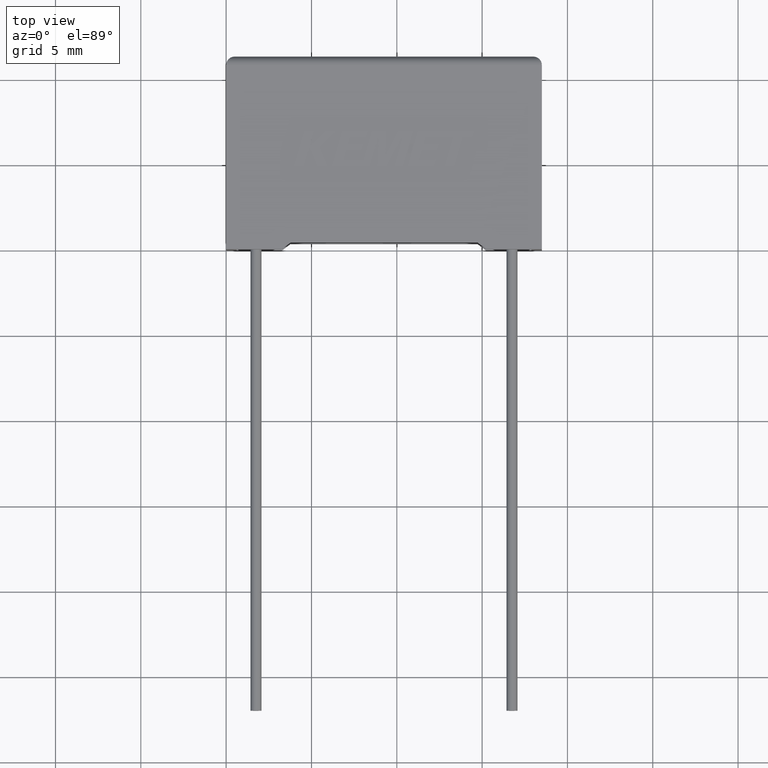
[diagram: clean part render]
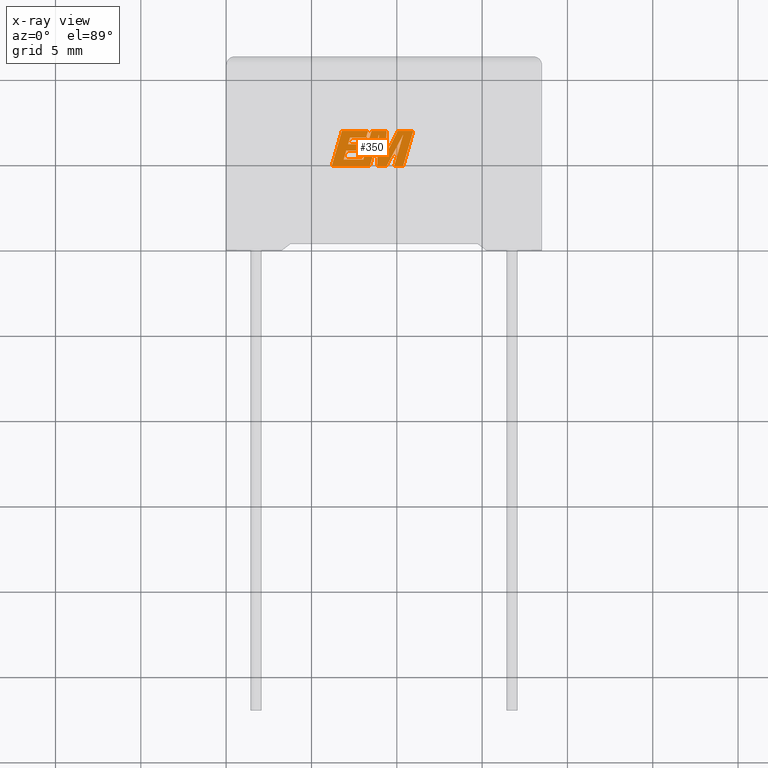
[diagram: x-ray — body ghosted, one internal face saturated and labeled with its STEP entity id]
A machine part, top view, then the same camera in x-ray: the body is ghosted and one INTERNAL B-rep face — a face not visible from any outside direction — is saturated and labeled: STEP entity #350.
In plain terms, the highlighted planar face has unit normal (0, 0, -1).
Its self-contained STEP definition (entity closure, byte-faithful):
#20 = CARTESIAN_POINT ( 'NONE',  ( 6.888674853712253743, 5.256618825333078782, 5.299999999999999822 ) ) ;
#31 = LINE ( 'NONE', #1707, #1577 ) ;
#39 = LINE ( 'NONE', #2155, #714 ) ;
#59 = VECTOR ( 'NONE', #2990, 1000.000000000000000 ) ;
#88 = VERTEX_POINT ( 'NONE', #2840 ) ;
#105 = ORIENTED_EDGE ( 'NONE', *, *, #169, .F. ) ;
#127 = CARTESIAN_POINT ( 'NONE',  ( 8.947895129408749426, 6.707175502838268244, 5.299999999999999822 ) ) ;
#145 = CARTESIAN_POINT ( 'NONE',  ( 9.843154327425178707, 4.862389999999935597, 5.299999999999999822 ) ) ;
#150 = DIRECTION ( 'NONE',  ( -1.000000000000000000, 0.000000000000000000, 0.000000000000000000 ) ) ;
#156 = CARTESIAN_POINT ( 'NONE',  ( 7.924683256288299837, 5.771630239467497425, 5.299999999999999822 ) ) ;
#163 = EDGE_CURVE ( 'NONE', #884, #2907, #1400, .T. ) ;
#169 = EDGE_CURVE ( 'NONE', #1984, #1025, #2555, .T. ) ;
#170 = LINE ( 'NONE', #1593, #754 ) ;
#196 = CARTESIAN_POINT ( 'NONE',  ( 8.200952163646057613, 6.540121274375008120, 5.299999999999999822 ) ) ;
#204 = CARTESIAN_POINT ( 'NONE',  ( 7.256856979931010088, 6.540121274375008120, 5.299999999999999822 ) ) ;
#213 = VECTOR ( 'NONE', #1572, 1000.000000000000227 ) ;
#236 = CARTESIAN_POINT ( 'NONE',  ( 10.05664773880616991, 6.934545418444622911, 5.299999999999999822 ) ) ;
#248 = VECTOR ( 'NONE', #1623, 1000.000000000000000 ) ;
#252 = ORIENTED_EDGE ( 'NONE', *, *, #435, .F. ) ;
#256 = VECTOR ( 'NONE', #1540, 1000.000000000000000 ) ;
#268 = VERTEX_POINT ( 'NONE', #1986 ) ;
#277 = VERTEX_POINT ( 'NONE', #236 ) ;
#282 = CARTESIAN_POINT ( 'NONE',  ( 8.418203306722089607, 4.862389999999935597, 5.299999999999999822 ) ) ;
#304 = ORIENTED_EDGE ( 'NONE', *, *, #1448, .F. ) ;
#330 = VERTEX_POINT ( 'NONE', #1393 ) ;
#341 = VERTEX_POINT ( 'NONE', #156 ) ;
#342 = CARTESIAN_POINT ( 'NONE',  ( 8.049365917641033263, 4.862389999999935597, 5.299999999999999822 ) ) ;
#350 = ADVANCED_FACE ( 'NONE', ( #1612 ), #2786, .T. ) ;
#357 = LINE ( 'NONE', #1296, #256 ) ;
#397 = CARTESIAN_POINT ( 'NONE',  ( 7.144706219326467433, 6.154700694176950648, 5.299999999999999822 ) ) ;
#414 = DIRECTION ( 'NONE',  ( 0.4668459304955080436, 0.8843386665637680277, 0.000000000000000000 ) ) ;
#432 = VERTEX_POINT ( 'NONE', #2593 ) ;
#435 = EDGE_CURVE ( 'NONE', #1056, #277, #2163, .T. ) ;
#444 = ORIENTED_EDGE ( 'NONE', *, *, #994, .F. ) ;
#445 = LINE ( 'NONE', #1156, #1659 ) ;
#475 = CARTESIAN_POINT ( 'NONE',  ( 8.418203306722089607, 4.862389999999935597, 5.299999999999999822 ) ) ;
#498 = DIRECTION ( 'NONE',  ( 0.2759782365590697228, 0.9611638845408965182, 0.000000000000000000 ) ) ;
#509 = VERTEX_POINT ( 'NONE', #772 ) ;
#529 = DIRECTION ( 'NONE',  ( -0.2765379750249963298, -0.9610029908221277006, 0.000000000000000000 ) ) ;
#560 = VECTOR ( 'NONE', #967, 1000.000000000000114 ) ;
#567 = VECTOR ( 'NONE', #1602, 1000.000000000000227 ) ;
#597 = VERTEX_POINT ( 'NONE', #204 ) ;
#610 = VECTOR ( 'NONE', #1403, 1000.000000000000000 ) ;
#626 = EDGE_CURVE ( 'NONE', #432, #341, #658, .T. ) ;
#645 = LINE ( 'NONE', #892, #567 ) ;
#647 = CARTESIAN_POINT ( 'NONE',  ( 10.37546720159486036, 6.716059355218821025, 5.299999999999999822 ) ) ;
#658 = LINE ( 'NONE', #1615, #59 ) ;
#664 = EDGE_CURVE ( 'NONE', #1697, #1239, #899, .T. ) ;
#671 = CARTESIAN_POINT ( 'NONE',  ( -0.2249145928931925442, -1.844503458202319868, 5.299999999999999822 ) ) ;
#690 = VERTEX_POINT ( 'NONE', #1854 ) ;
#701 = VECTOR ( 'NONE', #414, 1000.000000000000000 ) ;
#714 = VECTOR ( 'NONE', #2869, 1000.000000000000000 ) ;
#721 = ORIENTED_EDGE ( 'NONE', *, *, #826, .F. ) ;
#723 = DIRECTION ( 'NONE',  ( 1.000000000000000000, 0.000000000000000000, 0.000000000000000000 ) ) ;
#754 = VECTOR ( 'NONE', #2259, 1000.000000000000000 ) ;
#772 = CARTESIAN_POINT ( 'NONE',  ( 6.888674853712253743, 5.256618825333078782, 5.299999999999999822 ) ) ;
#813 = VECTOR ( 'NONE', #1863, 1000.000000000000000 ) ;
#826 = EDGE_CURVE ( 'NONE', #277, #268, #2946, .T. ) ;
#838 = CARTESIAN_POINT ( 'NONE',  ( 7.144706219326467433, 6.154700694176950648, 5.299999999999999822 ) ) ;
#844 = LINE ( 'NONE', #1549, #1064 ) ;
#871 = VECTOR ( 'NONE', #1496, 1000.000000000000000 ) ;
#873 = DIRECTION ( 'NONE',  ( 0.2732148821746286926, 0.9619530280415483636, 0.000000000000000000 ) ) ;
#884 = VERTEX_POINT ( 'NONE', #1071 ) ;
#890 = EDGE_CURVE ( 'NONE', #330, #884, #844, .T. ) ;
#892 = CARTESIAN_POINT ( 'NONE',  ( 8.947895129408749426, 6.707175502838268244, 5.299999999999999822 ) ) ;
#895 = ORIENTED_EDGE ( 'NONE', *, *, #1581, .F. ) ;
#899 = LINE ( 'NONE', #282, #1507 ) ;
#920 = CARTESIAN_POINT ( 'NONE',  ( 10.37546720159486036, 6.716059355218821025, 5.299999999999999822 ) ) ;
#925 = EDGE_CURVE ( 'NONE', #1468, #1056, #445, .T. ) ;
#951 = CARTESIAN_POINT ( 'NONE',  ( 7.256856979931010088, 6.540121274375008120, 5.299999999999999822 ) ) ;
#967 = DIRECTION ( 'NONE',  ( 0.2740217765954066076, 0.9617234872620595842, 0.000000000000000000 ) ) ;
#994 = EDGE_CURVE ( 'NONE', #1751, #1984, #170, .T. ) ;
#1025 = VERTEX_POINT ( 'NONE', #647 ) ;
#1033 = CARTESIAN_POINT ( 'NONE',  ( 8.037363267667190669, 5.256618825333078782, 5.299999999999999822 ) ) ;
#1056 = VERTEX_POINT ( 'NONE', #1588 ) ;
#1064 = VECTOR ( 'NONE', #1802, 1000.000000000000000 ) ;
#1071 = CARTESIAN_POINT ( 'NONE',  ( 8.519661943103439938, 6.934545418444622911, 5.299999999999999822 ) ) ;
#1113 = ORIENTED_EDGE ( 'NONE', *, *, #2718, .F. ) ;
#1115 = AXIS2_PLACEMENT_3D ( 'NONE', #671, #2761, #3005 ) ;
#1128 = EDGE_CURVE ( 'NONE', #2907, #509, #2802, .T. ) ;
#1156 = CARTESIAN_POINT ( 'NONE',  ( 10.36972105026527124, 4.862389999999935597, 5.299999999999999822 ) ) ;
#1193 = CARTESIAN_POINT ( 'NONE',  ( 8.312976912160237930, 6.934545418444622911, 5.299999999999999822 ) ) ;
#1212 = VECTOR ( 'NONE', #1686, 1000.000000000000000 ) ;
#1225 = EDGE_CURVE ( 'NONE', #690, #2996, #357, .T. ) ;
#1239 = VERTEX_POINT ( 'NONE', #127 ) ;
#1270 = VERTEX_POINT ( 'NONE', #1282 ) ;
#1277 = ORIENTED_EDGE ( 'NONE', *, *, #2834, .F. ) ;
#1282 = CARTESIAN_POINT ( 'NONE',  ( 6.782137931756158977, 6.934545418444622911, 5.299999999999999822 ) ) ;
#1283 = LINE ( 'NONE', #342, #871 ) ;
#1290 = ORIENTED_EDGE ( 'NONE', *, *, #2167, .F. ) ;
#1296 = CARTESIAN_POINT ( 'NONE',  ( 8.034099554527626807, 6.154700694176950648, 5.299999999999999822 ) ) ;
#1305 = EDGE_LOOP ( 'NONE', ( #252, #1770, #895, #1425, #105, #444, #1829, #1821, #2271, #1836, #1277, #304, #1290, #2396, #2172, #1761, #1413, #2945, #2749, #2376, #1784, #1113, #721 ) ) ;
#1391 = CARTESIAN_POINT ( 'NONE',  ( 8.312976912160237930, 6.934545418444622911, 5.299999999999999822 ) ) ;
#1393 = CARTESIAN_POINT ( 'NONE',  ( 9.402119625592375129, 6.934545418444622911, 5.299999999999999822 ) ) ;
#1400 = LINE ( 'NONE', #2512, #248 ) ;
#1403 = DIRECTION ( 'NONE',  ( -1.000000000000000000, 0.000000000000000000, 0.000000000000000000 ) ) ;
#1413 = ORIENTED_EDGE ( 'NONE', *, *, #626, .F. ) ;
#1419 = VECTOR ( 'NONE', #723, 1000.000000000000000 ) ;
#1425 = ORIENTED_EDGE ( 'NONE', *, *, #1727, .F. ) ;
#1448 = EDGE_CURVE ( 'NONE', #1539, #2350, #2046, .T. ) ;
#1456 = VECTOR ( 'NONE', #150, 1000.000000000000000 ) ;
#1458 = CARTESIAN_POINT ( 'NONE',  ( 8.844489607891244276, 4.862389999999935597, 5.299999999999999822 ) ) ;
#1464 = LINE ( 'NONE', #1193, #1212 ) ;
#1468 = VERTEX_POINT ( 'NONE', #2016 ) ;
#1496 = DIRECTION ( 'NONE',  ( 1.000000000000000000, 0.000000000000000000, 0.000000000000000000 ) ) ;
#1507 = VECTOR ( 'NONE', #498, 1000.000000000000227 ) ;
#1532 = EDGE_CURVE ( 'NONE', #1239, #1751, #645, .T. ) ;
#1539 = VERTEX_POINT ( 'NONE', #196 ) ;
#1540 = DIRECTION ( 'NONE',  ( -1.000000000000000000, 0.000000000000000000, 0.000000000000000000 ) ) ;
#1549 = CARTESIAN_POINT ( 'NONE',  ( 9.402119625592375129, 6.934545418444622911, 5.299999999999999822 ) ) ;
#1572 = DIRECTION ( 'NONE',  ( -0.4443210308329518243, -0.8958676361826801715, 0.000000000000000000 ) ) ;
#1577 = VECTOR ( 'NONE', #529, 1000.000000000000114 ) ;
#1581 = EDGE_CURVE ( 'NONE', #2209, #1468, #2021, .T. ) ;
#1588 = CARTESIAN_POINT ( 'NONE',  ( 10.96548101203375403, 6.934545418444622911, 5.299999999999999822 ) ) ;
#1593 = CARTESIAN_POINT ( 'NONE',  ( 8.844489607891244276, 4.862389999999935597, 5.299999999999999822 ) ) ;
#1602 = DIRECTION ( 'NONE',  ( -0.05596501978069369498, -0.9984327301130239141, 0.000000000000000000 ) ) ;
#1612 = FACE_OUTER_BOUND ( 'NONE', #1305, .T. ) ;
#1615 = CARTESIAN_POINT ( 'NONE',  ( 7.035415933177614711, 5.771630239467497425, 5.299999999999999822 ) ) ;
#1618 = DIRECTION ( 'NONE',  ( 0.2763139702539113007, 0.9610674221107073922, 0.000000000000000000 ) ) ;
#1623 = DIRECTION ( 'NONE',  ( -0.2762517575166417161, -0.9610853065513833560, 0.000000000000000000 ) ) ;
#1644 = EDGE_CURVE ( 'NONE', #2996, #597, #2968, .T. ) ;
#1659 = VECTOR ( 'NONE', #1618, 1000.000000000000114 ) ;
#1680 = LINE ( 'NONE', #20, #560 ) ;
#1686 = DIRECTION ( 'NONE',  ( -1.000000000000000000, 0.000000000000000000, 0.000000000000000000 ) ) ;
#1697 = VERTEX_POINT ( 'NONE', #475 ) ;
#1707 = CARTESIAN_POINT ( 'NONE',  ( 6.782137931756158977, 6.934545418444622911, 5.299999999999999822 ) ) ;
#1727 = EDGE_CURVE ( 'NONE', #1025, #2209, #2344, .T. ) ;
#1751 = VERTEX_POINT ( 'NONE', #1458 ) ;
#1761 = ORIENTED_EDGE ( 'NONE', *, *, #2558, .F. ) ;
#1770 = ORIENTED_EDGE ( 'NONE', *, *, #925, .F. ) ;
#1784 = ORIENTED_EDGE ( 'NONE', *, *, #890, .F. ) ;
#1802 = DIRECTION ( 'NONE',  ( -1.000000000000000000, 0.000000000000000000, 0.000000000000000000 ) ) ;
#1803 = CARTESIAN_POINT ( 'NONE',  ( 8.037363267667190669, 5.256618825333078782, 5.299999999999999822 ) ) ;
#1821 = ORIENTED_EDGE ( 'NONE', *, *, #664, .F. ) ;
#1829 = ORIENTED_EDGE ( 'NONE', *, *, #1532, .F. ) ;
#1836 = ORIENTED_EDGE ( 'NONE', *, *, #2379, .F. ) ;
#1854 = CARTESIAN_POINT ( 'NONE',  ( 8.034099554527626807, 6.154700694176950648, 5.299999999999999822 ) ) ;
#1863 = DIRECTION ( 'NONE',  ( 1.000000000000000000, 0.000000000000000000, 0.000000000000000000 ) ) ;
#1867 = VECTOR ( 'NONE', #2530, 1000.000000000000000 ) ;
#1984 = VERTEX_POINT ( 'NONE', #2911 ) ;
#1986 = CARTESIAN_POINT ( 'NONE',  ( 9.322430453529284122, 5.454170963577188225, 5.299999999999999822 ) ) ;
#2016 = CARTESIAN_POINT ( 'NONE',  ( 10.36972105026527124, 4.862389999999935597, 5.299999999999999822 ) ) ;
#2021 = LINE ( 'NONE', #145, #813 ) ;
#2046 = LINE ( 'NONE', #2982, #2381 ) ;
#2053 = DIRECTION ( 'NONE',  ( 0.2793947940878294123, 0.9601763114327593884, 0.000000000000000000 ) ) ;
#2069 = LINE ( 'NONE', #2738, #1867 ) ;
#2128 = LINE ( 'NONE', #951, #1419 ) ;
#2155 = CARTESIAN_POINT ( 'NONE',  ( 7.924683256288299837, 5.771630239467497425, 5.299999999999999822 ) ) ;
#2163 = LINE ( 'NONE', #2602, #610 ) ;
#2167 = EDGE_CURVE ( 'NONE', #597, #1539, #2128, .T. ) ;
#2172 = ORIENTED_EDGE ( 'NONE', *, *, #1225, .F. ) ;
#2178 = EDGE_CURVE ( 'NONE', #509, #432, #1680, .T. ) ;
#2198 = VECTOR ( 'NONE', #2365, 999.9999999999998863 ) ;
#2209 = VERTEX_POINT ( 'NONE', #2361 ) ;
#2259 = DIRECTION ( 'NONE',  ( 1.000000000000000000, 0.000000000000000000, 0.000000000000000000 ) ) ;
#2271 = ORIENTED_EDGE ( 'NONE', *, *, #2871, .F. ) ;
#2344 = LINE ( 'NONE', #920, #2198 ) ;
#2350 = VERTEX_POINT ( 'NONE', #1391 ) ;
#2361 = CARTESIAN_POINT ( 'NONE',  ( 9.843154327425178707, 4.862389999999935597, 5.299999999999999822 ) ) ;
#2365 = DIRECTION ( 'NONE',  ( -0.2760118818968580467, -0.9611542233438684635, 0.000000000000000000 ) ) ;
#2376 = ORIENTED_EDGE ( 'NONE', *, *, #163, .F. ) ;
#2379 = EDGE_CURVE ( 'NONE', #1270, #88, #31, .T. ) ;
#2381 = VECTOR ( 'NONE', #873, 999.9999999999998863 ) ;
#2396 = ORIENTED_EDGE ( 'NONE', *, *, #1644, .F. ) ;
#2512 = CARTESIAN_POINT ( 'NONE',  ( 8.519661943103439938, 6.934545418444622911, 5.299999999999999822 ) ) ;
#2530 = DIRECTION ( 'NONE',  ( 0.05375259206908576670, 0.9985542843760946141, 0.000000000000000000 ) ) ;
#2555 = LINE ( 'NONE', #3011, #701 ) ;
#2558 = EDGE_CURVE ( 'NONE', #341, #690, #39, .T. ) ;
#2593 = CARTESIAN_POINT ( 'NONE',  ( 7.035415933177614711, 5.771630239467497425, 5.299999999999999822 ) ) ;
#2602 = CARTESIAN_POINT ( 'NONE',  ( 10.96548101203375403, 6.934545418444622911, 5.299999999999999822 ) ) ;
#2716 = CARTESIAN_POINT ( 'NONE',  ( 10.05664773880616991, 6.934545418444622911, 5.299999999999999822 ) ) ;
#2718 = EDGE_CURVE ( 'NONE', #268, #330, #2069, .T. ) ;
#2738 = CARTESIAN_POINT ( 'NONE',  ( 9.322430453529284122, 5.454170963577188225, 5.299999999999999822 ) ) ;
#2749 = ORIENTED_EDGE ( 'NONE', *, *, #1128, .F. ) ;
#2761 = DIRECTION ( 'NONE',  ( 0.000000000000000000, 0.000000000000000000, -1.000000000000000000 ) ) ;
#2786 = PLANE ( 'NONE',  #1115 ) ;
#2802 = LINE ( 'NONE', #1803, #1456 ) ;
#2834 = EDGE_CURVE ( 'NONE', #2350, #1270, #1464, .T. ) ;
#2840 = CARTESIAN_POINT ( 'NONE',  ( 6.185855018147796258, 4.862389999999934709, 5.299999999999999822 ) ) ;
#2869 = DIRECTION ( 'NONE',  ( 0.2746459304916893385, 0.9615454294334481178, 0.000000000000000000 ) ) ;
#2871 = EDGE_CURVE ( 'NONE', #88, #1697, #1283, .T. ) ;
#2907 = VERTEX_POINT ( 'NONE', #1033 ) ;
#2911 = CARTESIAN_POINT ( 'NONE',  ( 9.396907711110600303, 4.862389999999935597, 5.299999999999999822 ) ) ;
#2930 = VECTOR ( 'NONE', #2053, 1000.000000000000227 ) ;
#2945 = ORIENTED_EDGE ( 'NONE', *, *, #2178, .F. ) ;
#2946 = LINE ( 'NONE', #2716, #213 ) ;
#2968 = LINE ( 'NONE', #397, #2930 ) ;
#2982 = CARTESIAN_POINT ( 'NONE',  ( 8.200952163646057613, 6.540121274375008120, 5.299999999999999822 ) ) ;
#2990 = DIRECTION ( 'NONE',  ( 1.000000000000000000, 0.000000000000000000, 0.000000000000000000 ) ) ;
#2996 = VERTEX_POINT ( 'NONE', #838 ) ;
#3005 = DIRECTION ( 'NONE',  ( -1.000000000000000000, 0.000000000000000000, 0.000000000000000000 ) ) ;
#3011 = CARTESIAN_POINT ( 'NONE',  ( 9.396907711110600303, 4.862389999999935597, 5.299999999999999822 ) ) ;